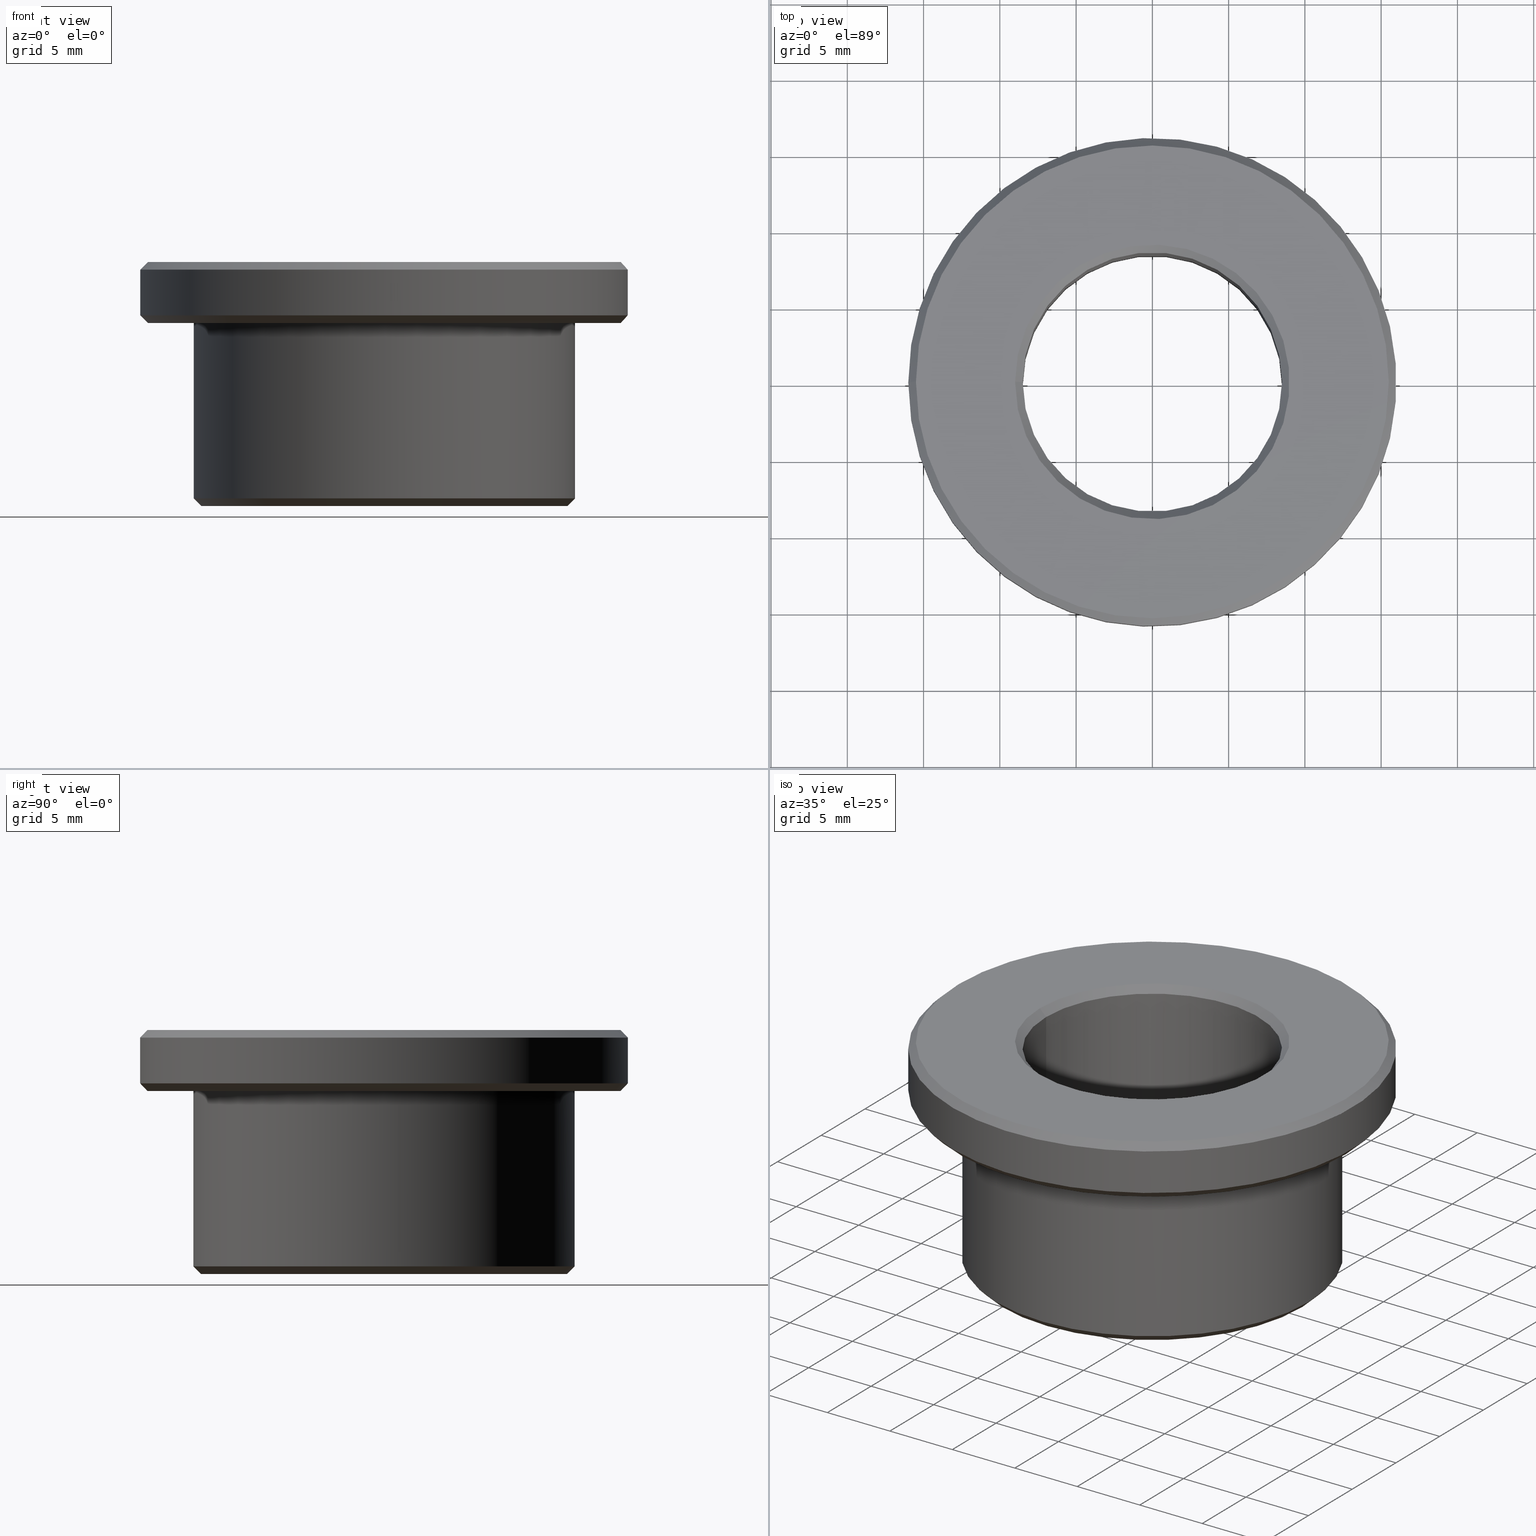
[diagram: canonical four-view strip — front | top / right | iso, engineering-drawing reading convention]
A machine part, canonical four-view strip (front | top / right | iso — engineering-drawing reading convention). The complete STEP part file that produces these views, byte-faithful:
ISO-10303-21;
HEADER;
FILE_DESCRIPTION(('STEP AP203'),'1');
FILE_NAME('590-LMF1716.stp','2018-04-20T10:46:32',(' '),(' '),'Spatial InterOp 3D',' ',' ');
FILE_SCHEMA(('CONFIG_CONTROL_DESIGN'));
ENDSEC;
DATA;
#1=DESIGN_CONTEXT('',#51,'design');
#2=APPLICATION_PROTOCOL_DEFINITION('INTERNATIONAL STANDARD','config_control_design',1994,#51);
#3=PRODUCT_CATEGORY_RELATIONSHIP('NONE','NONE',#52,#53);
#4=DATE_AND_TIME(#54,#55);
#5=DATE_TIME_ROLE('creation_date');
#6=DATE_TIME_ROLE('classification_date');
#7=PERSON_AND_ORGANIZATION_ROLE('creator');
#8=PERSON_AND_ORGANIZATION_ROLE('design_supplier');
#9=PERSON_AND_ORGANIZATION_ROLE('classification_officer');
#10=PERSON_AND_ORGANIZATION_ROLE('design_owner');
#11=APPROVAL_PERSON_ORGANIZATION(#56,#57,#58);
#12=APPROVAL_DATE_TIME(#4,#57);
#13=CC_DESIGN_APPROVAL(#57,(#59,#60,#61));
#14=CC_DESIGN_DATE_AND_TIME_ASSIGNMENT(#4,#5,(#61));
#15=CC_DESIGN_DATE_AND_TIME_ASSIGNMENT(#4,#6,(#59));
#16=CC_DESIGN_PERSON_AND_ORGANIZATION_ASSIGNMENT(#56,#10,(#62));
#17=CC_DESIGN_PERSON_AND_ORGANIZATION_ASSIGNMENT(#56,#7,(#61));
#18=CC_DESIGN_PERSON_AND_ORGANIZATION_ASSIGNMENT(#56,#7,(#60));
#19=CC_DESIGN_PERSON_AND_ORGANIZATION_ASSIGNMENT(#56,#8,(#60));
#20=CC_DESIGN_SECURITY_CLASSIFICATION(#59,(#60));
#21=CC_DESIGN_PERSON_AND_ORGANIZATION_ASSIGNMENT(#56,#9,(#59));
#22=SHAPE_DEFINITION_REPRESENTATION(#63,#64);
#23=DESIGN_CONTEXT('',#65,'design');
#24=APPLICATION_PROTOCOL_DEFINITION('INTERNATIONAL STANDARD','config_control_design',1994,#65);
#25=PRODUCT_CATEGORY_RELATIONSHIP('NONE','NONE',#66,#67);
#26=DATE_AND_TIME(#68,#69);
#27=DATE_TIME_ROLE('creation_date');
#28=DATE_TIME_ROLE('classification_date');
#29=PERSON_AND_ORGANIZATION_ROLE('creator');
#30=PERSON_AND_ORGANIZATION_ROLE('design_supplier');
#31=PERSON_AND_ORGANIZATION_ROLE('classification_officer');
#32=PERSON_AND_ORGANIZATION_ROLE('design_owner');
#33=APPROVAL_PERSON_ORGANIZATION(#70,#71,#72);
#34=APPROVAL_DATE_TIME(#26,#71);
#35=CC_DESIGN_APPROVAL(#71,(#73,#74,#75));
#36=CC_DESIGN_DATE_AND_TIME_ASSIGNMENT(#26,#27,(#75));
#37=CC_DESIGN_DATE_AND_TIME_ASSIGNMENT(#26,#28,(#73));
#38=CC_DESIGN_PERSON_AND_ORGANIZATION_ASSIGNMENT(#70,#32,(#76));
#39=CC_DESIGN_PERSON_AND_ORGANIZATION_ASSIGNMENT(#70,#29,(#75));
#40=CC_DESIGN_PERSON_AND_ORGANIZATION_ASSIGNMENT(#70,#29,(#74));
#41=CC_DESIGN_PERSON_AND_ORGANIZATION_ASSIGNMENT(#70,#30,(#74));
#42=CC_DESIGN_SECURITY_CLASSIFICATION(#73,(#74));
#43=CC_DESIGN_PERSON_AND_ORGANIZATION_ASSIGNMENT(#70,#31,(#73));
#44=CONTEXT_DEPENDENT_SHAPE_REPRESENTATION(#77,#78);
#45=SHAPE_DEFINITION_REPRESENTATION(#79,#80);
#46=SHAPE_REPRESENTATION_RELATIONSHIP('NONE','NONE',#80,#81);
#47= (GEOMETRIC_REPRESENTATION_CONTEXT(3)GLOBAL_UNCERTAINTY_ASSIGNED_CONTEXT((#84))GLOBAL_UNIT_ASSIGNED_CONTEXT((#86,#87,#88))REPRESENTATION_CONTEXT('NONE','WORKSPACE'));
#51=APPLICATION_CONTEXT('CONFIGURATION CONTROLLED 3D DESIGNS OF MECHANICAL PARTS AND ASSEMBLIES');
#52=PRODUCT_CATEGORY('part','NONE');
#53=PRODUCT_RELATED_PRODUCT_CATEGORY('detail',' ',(#62));
#54=CALENDAR_DATE(2018,20,3);
#55=LOCAL_TIME(12,46,32.0,#90);
#56=PERSON_AND_ORGANIZATION(#91,#92);
#57=APPROVAL(#93,'SOLID MODEL');
#58=APPROVAL_ROLE('APPROVED');
#59=SECURITY_CLASSIFICATION('','',#94);
#60=PRODUCT_DEFINITION_FORMATION_WITH_SPECIFIED_SOURCE(' ','NONE',#62,.NOT_KNOWN.);
#61=PRODUCT_DEFINITION('NONE','NONE',#60,#1);
#62=PRODUCT('','','PART--DESC',(#95));
#63=PRODUCT_DEFINITION_SHAPE('NONE','NONE',#61);
#64=SHAPE_REPRESENTATION('',(#96,#97),#98);
#65=APPLICATION_CONTEXT('CONFIGURATION CONTROLLED 3D DESIGNS OF MECHANICAL PARTS AND ASSEMBLIES');
#66=PRODUCT_CATEGORY('part','NONE');
#67=PRODUCT_RELATED_PRODUCT_CATEGORY('detail',' ',(#76));
#68=CALENDAR_DATE(2018,20,3);
#69=LOCAL_TIME(12,46,32.0,#99);
#70=PERSON_AND_ORGANIZATION(#100,#101);
#71=APPROVAL(#102,'SOLID MODEL');
#72=APPROVAL_ROLE('APPROVED');
#73=SECURITY_CLASSIFICATION('','',#103);
#74=PRODUCT_DEFINITION_FORMATION_WITH_SPECIFIED_SOURCE(' ','NONE',#76,.NOT_KNOWN.);
#75=PRODUCT_DEFINITION('590-LMF017x16','590-LMF017x16',#74,#23);
#76=PRODUCT('590-LMF017x16','590-LMF017x16','PART-590-LMF017x16-DESC',(#104));
#77=(REPRESENTATION_RELATIONSHIP('','',#80,#64)REPRESENTATION_RELATIONSHIP_WITH_TRANSFORMATION(#107)SHAPE_REPRESENTATION_RELATIONSHIP());
#78=PRODUCT_DEFINITION_SHAPE('NAUO-PROD-DEF','NAUO-PROD-DEF',#109);
#79=PRODUCT_DEFINITION_SHAPE('NONE','NONE',#75);
#80=SHAPE_REPRESENTATION('590-LMF017x16',(#96),#98);
#81=ADVANCED_BREP_SHAPE_REPRESENTATION('',(#110),#47);
#84=UNCERTAINTY_MEASURE_WITH_UNIT(LENGTH_MEASURE(1.0E-006),#86,'','');
#86= (CONVERSION_BASED_UNIT('METRE',#113)LENGTH_UNIT()NAMED_UNIT(#116));
#87= (NAMED_UNIT(#118)PLANE_ANGLE_UNIT()SI_UNIT($,.RADIAN.));
#88= (NAMED_UNIT(#118)SOLID_ANGLE_UNIT()SI_UNIT($,.STERADIAN.));
#90=COORDINATED_UNIVERSAL_TIME_OFFSET(1,0,.AHEAD.);
#91=PERSON('','UNSPECIFIED',$,$,$,$);
#92=ORGANIZATION('UNSPECIFIED','UNSPECIFIED','UNSPECIFIED');
#93=APPROVAL_STATUS('approved');
#94=SECURITY_CLASSIFICATION_LEVEL('unclassified');
#95=MECHANICAL_CONTEXT('',#51,'mechanical');
#96=AXIS2_PLACEMENT_3D('',#124,#125,#126);
#97=AXIS2_PLACEMENT_3D('',#127,#128,#129);
#98= (GEOMETRIC_REPRESENTATION_CONTEXT(3)GLOBAL_UNCERTAINTY_ASSIGNED_CONTEXT((#132))GLOBAL_UNIT_ASSIGNED_CONTEXT((#134,#135,#136))REPRESENTATION_CONTEXT('NONE','WORKSPACE'));
#99=COORDINATED_UNIVERSAL_TIME_OFFSET(1,0,.AHEAD.);
#100=PERSON('','UNSPECIFIED',$,$,$,$);
#101=ORGANIZATION('UNSPECIFIED','UNSPECIFIED','UNSPECIFIED');
#102=APPROVAL_STATUS('approved');
#103=SECURITY_CLASSIFICATION_LEVEL('unclassified');
#104=MECHANICAL_CONTEXT('',#65,'mechanical');
#107=ITEM_DEFINED_TRANSFORMATION('','',#96,#97);
#109=NEXT_ASSEMBLY_USAGE_OCCURRENCE('590-LMF017x16','590-LMF017x16','590-LMF017x16',#61,#75,$);
#110=MANIFOLD_SOLID_BREP('',#138);
#113=LENGTH_MEASURE_WITH_UNIT(LENGTH_MEASURE(1.0),#139);
#116=DIMENSIONAL_EXPONENTS(1.0,0.0,0.0,0.0,0.0,0.0,0.0);
#118=DIMENSIONAL_EXPONENTS(0.0,0.0,0.0,0.0,0.0,0.0,0.0);
#124=CARTESIAN_POINT('',(0.0,0.0,0.0));
#125=DIRECTION('',(0.0,0.0,1.0));
#126=DIRECTION('',(1.0,0.0,0.0));
#127=CARTESIAN_POINT('',(0.0,0.0,0.0));
#128=DIRECTION('',(5.48707263966374E-016,-5.48707263966374E-016,1.0));
#129=DIRECTION('',(-1.60812264967663E-016,1.0,5.48707263966374E-016));
#132=UNCERTAINTY_MEASURE_WITH_UNIT(LENGTH_MEASURE(1.0E-006),#134,'','');
#134= (CONVERSION_BASED_UNIT('METRE',#142)LENGTH_UNIT()NAMED_UNIT(#145));
#135= (NAMED_UNIT(#147)PLANE_ANGLE_UNIT()SI_UNIT($,.RADIAN.));
#136= (NAMED_UNIT(#147)SOLID_ANGLE_UNIT()SI_UNIT($,.STERADIAN.));
#138=CLOSED_SHELL('',(#153,#154,#155,#156,#157,#158,#159,#160,#161,#162,#163,#164,#165,#166,#167,#168,#169,#170));
#139= (NAMED_UNIT(#116)LENGTH_UNIT()SI_UNIT($,.METRE.));
#142=LENGTH_MEASURE_WITH_UNIT(LENGTH_MEASURE(1.0),#172);
#145=DIMENSIONAL_EXPONENTS(1.0,0.0,0.0,0.0,0.0,0.0,0.0);
#147=DIMENSIONAL_EXPONENTS(0.0,0.0,0.0,0.0,0.0,0.0,0.0);
#153=ADVANCED_FACE('',(#173),#174,.F.);
#154=ADVANCED_FACE('',(#175),#176,.T.);
#155=ADVANCED_FACE('',(#177),#178,.F.);
#156=ADVANCED_FACE('',(#179,#180),#181,.F.);
#157=ADVANCED_FACE('',(#182,#183),#184,.F.);
#158=ADVANCED_FACE('',(#185,#186),#187,.T.);
#159=ADVANCED_FACE('',(#188,#189,#190),#191,.F.);
#160=ADVANCED_FACE('',(#192,#193),#194,.T.);
#161=ADVANCED_FACE('',(#195,#196),#197,.T.);
#162=ADVANCED_FACE('',(#198,#199),#200,.T.);
#163=ADVANCED_FACE('',(#201,#202),#203,.T.);
#164=ADVANCED_FACE('',(#204,#205),#206,.T.);
#165=ADVANCED_FACE('',(#207,#208),#209,.T.);
#166=ADVANCED_FACE('',(#210,#211),#212,.T.);
#167=ADVANCED_FACE('',(#213),#214,.T.);
#168=ADVANCED_FACE('',(#215),#216,.F.);
#169=ADVANCED_FACE('',(#217),#218,.F.);
#170=ADVANCED_FACE('',(#219),#220,.F.);
#172= (NAMED_UNIT(#145)LENGTH_UNIT()SI_UNIT($,.METRE.));
#173=FACE_OUTER_BOUND('',#222,.T.);
#174=CYLINDRICAL_SURFACE('',#223,0.00075);
#175=FACE_OUTER_BOUND('',#224,.T.);
#176=PLANE('',#225);
#177=FACE_OUTER_BOUND('',#226,.T.);
#178=CYLINDRICAL_SURFACE('',#227,0.00075);
#179=FACE_BOUND('',#228,.T.);
#180=FACE_OUTER_BOUND('',#229,.T.);
#181=CONICAL_SURFACE('',#230,0.009,0.785398163397443);
#182=FACE_OUTER_BOUND('',#231,.T.);
#183=FACE_BOUND('',#232,.T.);
#184=CONICAL_SURFACE('',#233,0.0085,0.785398163397442);
#185=FACE_BOUND('',#234,.T.);
#186=FACE_OUTER_BOUND('',#235,.T.);
#187=PLANE('',#236);
#188=FACE_OUTER_BOUND('',#237,.T.);
#189=FACE_OUTER_BOUND('',#238,.T.);
#190=FACE_BOUND('',#239,.T.);
#191=CYLINDRICAL_SURFACE('',#240,0.0085);
#192=FACE_BOUND('',#241,.T.);
#193=FACE_OUTER_BOUND('',#242,.T.);
#194=CONICAL_SURFACE('',#243,0.016,0.78539816339745);
#195=FACE_OUTER_BOUND('',#244,.T.);
#196=FACE_OUTER_BOUND('',#245,.T.);
#197=CYLINDRICAL_SURFACE('',#246,0.016);
#198=FACE_OUTER_BOUND('',#247,.T.);
#199=FACE_BOUND('',#248,.T.);
#200=CONICAL_SURFACE('',#249,0.0155,0.785398163397448);
#201=FACE_OUTER_BOUND('',#250,.T.);
#202=FACE_BOUND('',#251,.T.);
#203=PLANE('',#252);
#204=FACE_OUTER_BOUND('',#253,.T.);
#205=FACE_OUTER_BOUND('',#254,.T.);
#206=CYLINDRICAL_SURFACE('',#255,0.0125);
#207=FACE_OUTER_BOUND('',#256,.T.);
#208=FACE_BOUND('',#257,.T.);
#209=CONICAL_SURFACE('',#258,0.012,0.785398163397449);
#210=FACE_OUTER_BOUND('',#259,.T.);
#211=FACE_BOUND('',#260,.T.);
#212=PLANE('',#261);
#213=FACE_OUTER_BOUND('',#262,.T.);
#214=PLANE('',#263);
#215=FACE_OUTER_BOUND('',#264,.T.);
#216=SPHERICAL_SURFACE('',#265,0.00075);
#217=FACE_OUTER_BOUND('',#266,.T.);
#218=CYLINDRICAL_SURFACE('',#267,0.00075);
#219=FACE_OUTER_BOUND('',#268,.T.);
#220=SPHERICAL_SURFACE('',#269,0.00075);
#222=EDGE_LOOP('',(#270,#271,#272,#273));
#223=AXIS2_PLACEMENT_3D('',#274,#275,#276);
#224=EDGE_LOOP('',(#277,#278,#279,#280));
#225=AXIS2_PLACEMENT_3D('',#281,#282,#283);
#226=EDGE_LOOP('',(#284,#285,#286,#287));
#227=AXIS2_PLACEMENT_3D('',#288,#289,#290);
#228=EDGE_LOOP('',(#291));
#229=EDGE_LOOP('',(#292));
#230=AXIS2_PLACEMENT_3D('',#293,#294,#295);
#231=EDGE_LOOP('',(#296));
#232=EDGE_LOOP('',(#297));
#233=AXIS2_PLACEMENT_3D('',#298,#299,#300);
#234=EDGE_LOOP('',(#301));
#235=EDGE_LOOP('',(#302));
#236=AXIS2_PLACEMENT_3D('',#303,#304,#305);
#237=EDGE_LOOP('',(#306));
#238=EDGE_LOOP('',(#307));
#239=EDGE_LOOP('',(#308,#309,#310,#311));
#240=AXIS2_PLACEMENT_3D('',#312,#313,#314);
#241=EDGE_LOOP('',(#315));
#242=EDGE_LOOP('',(#316));
#243=AXIS2_PLACEMENT_3D('',#317,#318,#319);
#244=EDGE_LOOP('',(#320));
#245=EDGE_LOOP('',(#321));
#246=AXIS2_PLACEMENT_3D('',#322,#323,#324);
#247=EDGE_LOOP('',(#325));
#248=EDGE_LOOP('',(#326));
#249=AXIS2_PLACEMENT_3D('',#327,#328,#329);
#250=EDGE_LOOP('',(#330));
#251=EDGE_LOOP('',(#331));
#252=AXIS2_PLACEMENT_3D('',#332,#333,#334);
#253=EDGE_LOOP('',(#335));
#254=EDGE_LOOP('',(#336));
#255=AXIS2_PLACEMENT_3D('',#337,#338,#339);
#256=EDGE_LOOP('',(#340));
#257=EDGE_LOOP('',(#341));
#258=AXIS2_PLACEMENT_3D('',#342,#343,#344);
#259=EDGE_LOOP('',(#345));
#260=EDGE_LOOP('',(#346));
#261=AXIS2_PLACEMENT_3D('',#347,#348,#349);
#262=EDGE_LOOP('',(#350,#351,#352,#353));
#263=AXIS2_PLACEMENT_3D('',#354,#355,#356);
#264=EDGE_LOOP('',(#357,#358));
#265=AXIS2_PLACEMENT_3D('',#359,#360,#361);
#266=EDGE_LOOP('',(#362,#363,#364,#365));
#267=AXIS2_PLACEMENT_3D('',#366,#367,#368);
#268=EDGE_LOOP('',(#369,#370));
#269=AXIS2_PLACEMENT_3D('',#371,#372,#373);
#270=ORIENTED_EDGE('',*,*,#374,.F.);
#271=ORIENTED_EDGE('',*,*,#375,.T.);
#272=ORIENTED_EDGE('',*,*,#376,.T.);
#273=ORIENTED_EDGE('',*,*,#377,.F.);
#274=CARTESIAN_POINT('',(7.11236625150491E-017,-0.0095000000000002,0.00375));
#275=DIRECTION('',(0.0,1.0,0.0));
#276=DIRECTION('',(0.0,0.0,1.0));
#277=ORIENTED_EDGE('',*,*,#378,.F.);
#278=ORIENTED_EDGE('',*,*,#379,.T.);
#279=ORIENTED_EDGE('',*,*,#374,.T.);
#280=ORIENTED_EDGE('',*,*,#380,.F.);
#281=CARTESIAN_POINT('',(-0.00074999999999993,-0.0095000000000002,0.01225));
#282=DIRECTION('',(1.0,0.0,1.020425574104E-016));
#283=DIRECTION('',(-1.020425574104E-016,0.0,1.0));
#284=ORIENTED_EDGE('',*,*,#381,.F.);
#285=ORIENTED_EDGE('',*,*,#382,.T.);
#286=ORIENTED_EDGE('',*,*,#378,.T.);
#287=ORIENTED_EDGE('',*,*,#383,.F.);
#288=CARTESIAN_POINT('',(7.06899816460549E-017,-0.0095000000000002,0.01225));
#289=DIRECTION('',(0.0,1.0,0.0));
#290=DIRECTION('',(0.0,0.0,1.0));
#291=ORIENTED_EDGE('',*,*,#384,.T.);
#292=ORIENTED_EDGE('',*,*,#385,.F.);
#293=CARTESIAN_POINT('',(0.0,0.0,0.016));
#294=DIRECTION('',(-0.0,6.12323399573677E-017,1.0));
#295=DIRECTION('',(0.0,-1.0,6.12323399573677E-017));
#296=ORIENTED_EDGE('',*,*,#386,.T.);
#297=ORIENTED_EDGE('',*,*,#387,.F.);
#298=CARTESIAN_POINT('',(0.0,0.0,0.0005));
#299=DIRECTION('',(0.0,-6.12323399573677E-017,-1.0));
#300=DIRECTION('',(0.0,1.0,-6.12323399573677E-017));
#301=ORIENTED_EDGE('',*,*,#385,.T.);
#302=ORIENTED_EDGE('',*,*,#388,.F.);
#303=CARTESIAN_POINT('',(0.0155,0.0,0.016));
#304=DIRECTION('',(0.0,6.12323399573677E-017,1.0));
#305=DIRECTION('',(0.0,-1.0,6.12323399573677E-017));
#306=ORIENTED_EDGE('',*,*,#387,.T.);
#307=ORIENTED_EDGE('',*,*,#384,.F.);
#308=ORIENTED_EDGE('',*,*,#389,.T.);
#309=ORIENTED_EDGE('',*,*,#383,.T.);
#310=ORIENTED_EDGE('',*,*,#380,.T.);
#311=ORIENTED_EDGE('',*,*,#377,.T.);
#312=CARTESIAN_POINT('',(0.0,0.0,0.0));
#313=DIRECTION('',(0.0,-6.12323399573677E-017,-1.0));
#314=DIRECTION('',(0.0,1.0,-6.12323399573677E-017));
#315=ORIENTED_EDGE('',*,*,#388,.T.);
#316=ORIENTED_EDGE('',*,*,#390,.F.);
#317=CARTESIAN_POINT('',(0.0,0.0,0.0155));
#318=DIRECTION('',(0.0,-6.12323399573677E-017,-1.0));
#319=DIRECTION('',(0.0,1.0,-6.12323399573677E-017));
#320=ORIENTED_EDGE('',*,*,#390,.T.);
#321=ORIENTED_EDGE('',*,*,#391,.F.);
#322=CARTESIAN_POINT('',(0.0,0.0,0.0));
#323=DIRECTION('',(0.0,-6.12323399573677E-017,-1.0));
#324=DIRECTION('',(0.0,1.0,-6.12323399573677E-017));
#325=ORIENTED_EDGE('',*,*,#391,.T.);
#326=ORIENTED_EDGE('',*,*,#392,.F.);
#327=CARTESIAN_POINT('',(0.0,0.0,0.012));
#328=DIRECTION('',(-0.0,6.12323399573677E-017,1.0));
#329=DIRECTION('',(0.0,-1.0,6.12323399573677E-017));
#330=ORIENTED_EDGE('',*,*,#392,.T.);
#331=ORIENTED_EDGE('',*,*,#393,.F.);
#332=CARTESIAN_POINT('',(0.0125,0.0,0.012));
#333=DIRECTION('',(0.0,-6.12323399573677E-017,-1.0));
#334=DIRECTION('',(0.0,1.0,-6.12323399573677E-017));
#335=ORIENTED_EDGE('',*,*,#393,.T.);
#336=ORIENTED_EDGE('',*,*,#394,.F.);
#337=CARTESIAN_POINT('',(0.0,0.0,0.0));
#338=DIRECTION('',(0.0,-6.12323399573677E-017,-1.0));
#339=DIRECTION('',(0.0,1.0,-6.12323399573677E-017));
#340=ORIENTED_EDGE('',*,*,#394,.T.);
#341=ORIENTED_EDGE('',*,*,#395,.F.);
#342=CARTESIAN_POINT('',(0.0,0.0,0.0));
#343=DIRECTION('',(-0.0,6.12323399573677E-017,1.0));
#344=DIRECTION('',(0.0,-1.0,6.12323399573677E-017));
#345=ORIENTED_EDGE('',*,*,#395,.T.);
#346=ORIENTED_EDGE('',*,*,#386,.F.);
#347=CARTESIAN_POINT('',(0.009,0.0,0.0));
#348=DIRECTION('',(0.0,-6.12323399573677E-017,-1.0));
#349=DIRECTION('',(0.0,1.0,-6.12323399573677E-017));
#350=ORIENTED_EDGE('',*,*,#376,.F.);
#351=ORIENTED_EDGE('',*,*,#396,.T.);
#352=ORIENTED_EDGE('',*,*,#381,.T.);
#353=ORIENTED_EDGE('',*,*,#389,.F.);
#354=CARTESIAN_POINT('',(0.000750000000000071,-0.0095000000000002,0.00375));
#355=DIRECTION('',(-1.0,0.0,0.0));
#356=DIRECTION('',(0.0,1.0,0.0));
#357=ORIENTED_EDGE('',*,*,#375,.F.);
#358=ORIENTED_EDGE('',*,*,#397,.T.);
#359=CARTESIAN_POINT('',(7.11236625150491E-017,-0.0087500000000002,0.00375));
#360=DIRECTION('',(0.0,-1.0,0.0));
#361=DIRECTION('',(0.0,0.0,-1.0));
#362=ORIENTED_EDGE('',*,*,#379,.F.);
#363=ORIENTED_EDGE('',*,*,#398,.T.);
#364=ORIENTED_EDGE('',*,*,#396,.F.);
#365=ORIENTED_EDGE('',*,*,#397,.F.);
#366=CARTESIAN_POINT('',(6.9931040125315E-017,-0.0087500000000002,0.01225));
#367=DIRECTION('',(1.020425574104E-016,0.0,-1.0));
#368=DIRECTION('',(-1.0,0.0,-1.020425574104E-016));
#369=ORIENTED_EDGE('',*,*,#398,.F.);
#370=ORIENTED_EDGE('',*,*,#382,.F.);
#371=CARTESIAN_POINT('',(7.06899816460549E-017,-0.0087500000000002,0.01225));
#372=DIRECTION('',(0.0,-1.0,0.0));
#373=DIRECTION('',(0.0,0.0,-1.0));
#374=EDGE_CURVE('',#399,#400,#401,.T.);
#375=EDGE_CURVE('',#399,#402,#403,.F.);
#376=EDGE_CURVE('',#402,#404,#405,.T.);
#377=EDGE_CURVE('',#400,#404,#406,.T.);
#378=EDGE_CURVE('',#407,#408,#409,.T.);
#379=EDGE_CURVE('',#407,#399,#410,.T.);
#380=EDGE_CURVE('',#408,#400,#411,.T.);
#381=EDGE_CURVE('',#412,#413,#414,.T.);
#382=EDGE_CURVE('',#412,#407,#415,.F.);
#383=EDGE_CURVE('',#413,#408,#416,.T.);
#384=EDGE_CURVE('',#417,#417,#418,.T.);
#385=EDGE_CURVE('',#419,#419,#420,.T.);
#386=EDGE_CURVE('',#421,#421,#422,.T.);
#387=EDGE_CURVE('',#423,#423,#424,.T.);
#388=EDGE_CURVE('',#425,#425,#426,.T.);
#389=EDGE_CURVE('',#404,#413,#427,.F.);
#390=EDGE_CURVE('',#428,#428,#429,.T.);
#391=EDGE_CURVE('',#430,#430,#431,.T.);
#392=EDGE_CURVE('',#432,#432,#433,.T.);
#393=EDGE_CURVE('',#434,#434,#435,.T.);
#394=EDGE_CURVE('',#436,#436,#437,.T.);
#395=EDGE_CURVE('',#438,#438,#439,.T.);
#396=EDGE_CURVE('',#402,#412,#440,.T.);
#397=EDGE_CURVE('',#399,#402,#441,.T.);
#398=EDGE_CURVE('',#407,#412,#442,.T.);
#399=VERTEX_POINT('',#443);
#400=VERTEX_POINT('',#444);
#401=LINE('',#445,#446);
#402=VERTEX_POINT('',#447);
#403=CIRCLE('',#448,0.00075);
#404=VERTEX_POINT('',#449);
#405=LINE('',#450,#451);
#406=B_SPLINE_CURVE_WITH_KNOTS('',3,(#452,#453,#454,#455,#456,#457,#458,#459,#460,#461,#462,#463,#464,#465),.UNSPECIFIED.,.F.,.F.,(4,2,2,2,2,2,4),(0.0,0.000293183881928983,0.000586367763857965,0.00117273552771593,0.00146591940964491,0.0017591032915739,0.00234547105543186),.UNSPECIFIED.);
#407=VERTEX_POINT('',#466);
#408=VERTEX_POINT('',#467);
#409=LINE('',#468,#469);
#410=LINE('',#470,#471);
#411=LINE('',#472,#473);
#412=VERTEX_POINT('',#474);
#413=VERTEX_POINT('',#475);
#414=LINE('',#476,#477);
#415=CIRCLE('',#478,0.00075);
#416=B_SPLINE_CURVE_WITH_KNOTS('',3,(#479,#480,#481,#482,#483,#484,#485,#486,#487,#488,#489,#490,#491,#492),.UNSPECIFIED.,.F.,.F.,(4,2,2,2,2,2,4),(0.0,0.000293183881928981,0.000586367763857962,0.00117273552771592,0.0014659194096449,0.00175910329157388,0.00234547105543185),.UNSPECIFIED.);
#417=VERTEX_POINT('',#493);
#418=CIRCLE('',#494,0.0085);
#419=VERTEX_POINT('',#495);
#420=CIRCLE('',#496,0.009);
#421=VERTEX_POINT('',#497);
#422=CIRCLE('',#498,0.009);
#423=VERTEX_POINT('',#499);
#424=CIRCLE('',#500,0.0085);
#425=VERTEX_POINT('',#501);
#426=CIRCLE('',#502,0.0155);
#427=LINE('',#503,#504);
#428=VERTEX_POINT('',#505);
#429=CIRCLE('',#506,0.016);
#430=VERTEX_POINT('',#507);
#431=CIRCLE('',#508,0.016);
#432=VERTEX_POINT('',#509);
#433=CIRCLE('',#510,0.0155);
#434=VERTEX_POINT('',#511);
#435=CIRCLE('',#512,0.0125);
#436=VERTEX_POINT('',#513);
#437=CIRCLE('',#514,0.0125);
#438=VERTEX_POINT('',#515);
#439=CIRCLE('',#516,0.012);
#440=LINE('',#517,#518);
#441=CIRCLE('',#519,0.00075);
#442=CIRCLE('',#520,0.00075);
#443=CARTESIAN_POINT('',(-0.000749999999999929,-0.0087500000000002,0.00375));
#444=CARTESIAN_POINT('',(-0.000749999999999929,-0.00846684711093806,0.00375));
#445=CARTESIAN_POINT('',(-0.000749999999999929,-0.0095000000000002,0.00375));
#446=VECTOR('',#521,1.0);
#447=CARTESIAN_POINT('',(0.000750000000000071,-0.0087500000000002,0.00375));
#448=AXIS2_PLACEMENT_3D('',#522,#523,#524);
#449=CARTESIAN_POINT('',(0.000750000000000071,-0.00846684711093805,0.00375));
#450=CARTESIAN_POINT('',(0.000750000000000071,-0.0095000000000002,0.00375));
#451=VECTOR('',#525,1.0);
#452=CARTESIAN_POINT('',(-0.000749999999999929,-0.00846684711093806,0.00375));
#453=CARTESIAN_POINT('',(-0.000749999999999929,-0.00846684711093806,0.0036508611872936));
#454=CARTESIAN_POINT('',(-0.000730468172787895,-0.00846863878928428,0.00355358360969306));
#455=CARTESIAN_POINT('',(-0.00065517630374202,-0.00847479620438399,0.00337196936519344));
#456=CARTESIAN_POINT('',(-0.000599468761819626,-0.00847911772780836,0.00328880595669005));
#457=CARTESIAN_POINT('',(-0.000392022436605981,-0.00849208568980102,0.0030813675321028));
#458=CARTESIAN_POINT('',(-0.000196256689362259,-0.00849998786390899,0.00300013754239835));
#459=CARTESIAN_POINT('',(9.73388534999804E-005,-0.00850000604360251,0.00299993150582145));
#460=CARTESIAN_POINT('',(0.000195662172419677,-0.00849823366284435,0.0030193322233774));
#461=CARTESIAN_POINT('',(0.000377317798814342,-0.00849210753304,0.00309441601284921));
#462=CARTESIAN_POINT('',(0.000459907177949217,-0.00848783908855336,0.00314934407798534));
#463=CARTESIAN_POINT('',(0.000670075378625282,-0.00847470984806996,0.00335922182394353));
#464=CARTESIAN_POINT('',(0.000750000000000071,-0.00846684711093805,0.00355172269203866));
#465=CARTESIAN_POINT('',(0.000750000000000071,-0.00846684711093805,0.00375));
#466=CARTESIAN_POINT('',(-0.00074999999999993,-0.0087500000000002,0.01225));
#467=CARTESIAN_POINT('',(-0.00074999999999993,-0.00846684711093806,0.01225));
#468=CARTESIAN_POINT('',(-0.00074999999999993,-0.0095000000000002,0.01225));
#469=VECTOR('',#526,1.0);
#470=CARTESIAN_POINT('',(-0.00074999999999993,-0.0087500000000002,0.01225));
#471=VECTOR('',#527,1.0);
#472=CARTESIAN_POINT('',(-0.000749999999999929,-0.00846684711093806,4.41912942606223E-019));
#473=VECTOR('',#528,1.0);
#474=CARTESIAN_POINT('',(0.000750000000000071,-0.0087500000000002,0.01225));
#475=CARTESIAN_POINT('',(0.000750000000000071,-0.00846684711093805,0.01225));
#476=CARTESIAN_POINT('',(0.000750000000000071,-0.0095000000000002,0.01225));
#477=VECTOR('',#529,1.0);
#478=AXIS2_PLACEMENT_3D('',#530,#531,#532);
#479=CARTESIAN_POINT('',(0.000750000000000072,-0.00846684711093805,0.01225));
#480=CARTESIAN_POINT('',(0.000750000000000072,-0.00846684711093805,0.0123491388127064));
#481=CARTESIAN_POINT('',(0.000730468172788034,-0.00846863878928426,0.0124464163903069));
#482=CARTESIAN_POINT('',(0.00065517630374216,-0.00847479620438397,0.0126280306348066));
#483=CARTESIAN_POINT('',(0.000599468761819761,-0.00847911772780834,0.01271119404331));
#484=CARTESIAN_POINT('',(0.000392022436606129,-0.00849208568980101,0.0129186324678972));
#485=CARTESIAN_POINT('',(0.000196256689362385,-0.00849998786390899,0.0129998624576016));
#486=CARTESIAN_POINT('',(-9.73388534998256E-005,-0.00850000604360252,0.0130000684941786));
#487=CARTESIAN_POINT('',(-0.000195662172419537,-0.00849823366284435,0.0129806677766226));
#488=CARTESIAN_POINT('',(-0.000377317798814187,-0.00849210753304001,0.0129055839871508));
#489=CARTESIAN_POINT('',(-0.000459907177949074,-0.00848783908855336,0.0128506559220147));
#490=CARTESIAN_POINT('',(-0.000670075378625129,-0.00847470984806998,0.0126407781760565));
#491=CARTESIAN_POINT('',(-0.00074999999999993,-0.00846684711093806,0.0124482773079613));
#492=CARTESIAN_POINT('',(-0.00074999999999993,-0.00846684711093806,0.01225));
#493=CARTESIAN_POINT('',(0.0,0.0085,0.0155));
#494=AXIS2_PLACEMENT_3D('',#533,#534,#535);
#495=CARTESIAN_POINT('',(0.0,0.009,0.016));
#496=AXIS2_PLACEMENT_3D('',#536,#537,#538);
#497=CARTESIAN_POINT('',(0.0,0.009,-5.51091059616309E-019));
#498=AXIS2_PLACEMENT_3D('',#539,#540,#541);
#499=CARTESIAN_POINT('',(0.0,0.0085,0.0005));
#500=AXIS2_PLACEMENT_3D('',#542,#543,#544);
#501=CARTESIAN_POINT('',(0.0,0.0155,0.016));
#502=AXIS2_PLACEMENT_3D('',#545,#546,#547);
#503=CARTESIAN_POINT('',(0.000750000000000071,-0.00846684711093805,5.18444860664015E-019));
#504=VECTOR('',#548,1.0);
#505=CARTESIAN_POINT('',(0.0,0.016,0.0155));
#506=AXIS2_PLACEMENT_3D('',#549,#550,#551);
#507=CARTESIAN_POINT('',(0.0,0.016,0.0125));
#508=AXIS2_PLACEMENT_3D('',#552,#553,#554);
#509=CARTESIAN_POINT('',(0.0,0.0155,0.012));
#510=AXIS2_PLACEMENT_3D('',#555,#556,#557);
#511=CARTESIAN_POINT('',(0.0,0.0125,0.012));
#512=AXIS2_PLACEMENT_3D('',#558,#559,#560);
#513=CARTESIAN_POINT('',(0.0,0.0125,0.0005));
#514=AXIS2_PLACEMENT_3D('',#561,#562,#563);
#515=CARTESIAN_POINT('',(0.0,0.012,-7.34788079488412E-019));
#516=AXIS2_PLACEMENT_3D('',#564,#565,#566);
#517=CARTESIAN_POINT('',(0.000750000000000071,-0.0087500000000002,0.00375));
#518=VECTOR('',#567,1.0);
#519=AXIS2_PLACEMENT_3D('',#568,#569,#570);
#520=AXIS2_PLACEMENT_3D('',#571,#572,#573);
#521=DIRECTION('',(0.0,1.0,0.0));
#522=CARTESIAN_POINT('',(7.11236625150491E-017,-0.0087500000000002,0.00375));
#523=DIRECTION('',(0.0,1.0,0.0));
#524=DIRECTION('',(0.0,0.0,1.0));
#525=DIRECTION('',(0.0,1.0,0.0));
#526=DIRECTION('',(0.0,1.0,0.0));
#527=DIRECTION('',(1.020425574104E-016,0.0,-1.0));
#528=DIRECTION('',(0.0,-6.12323399573677E-017,-1.0));
#529=DIRECTION('',(0.0,1.0,0.0));
#530=CARTESIAN_POINT('',(7.06899816460549E-017,-0.0087500000000002,0.01225));
#531=DIRECTION('',(0.0,1.0,0.0));
#532=DIRECTION('',(0.0,0.0,1.0));
#533=CARTESIAN_POINT('',(0.0,0.0,0.0155));
#534=DIRECTION('',(0.0,-6.12323399573677E-017,-1.0));
#535=DIRECTION('',(0.0,1.0,-6.12323399573677E-017));
#536=CARTESIAN_POINT('',(0.0,0.0,0.016));
#537=DIRECTION('',(0.0,-6.12323399573677E-017,-1.0));
#538=DIRECTION('',(0.0,1.0,-6.12323399573677E-017));
#539=CARTESIAN_POINT('',(0.0,0.0,0.0));
#540=DIRECTION('',(0.0,-6.12323399573677E-017,-1.0));
#541=DIRECTION('',(0.0,1.0,-6.12323399573677E-017));
#542=CARTESIAN_POINT('',(0.0,0.0,0.0005));
#543=DIRECTION('',(0.0,-6.12323399573677E-017,-1.0));
#544=DIRECTION('',(0.0,1.0,-6.12323399573677E-017));
#545=CARTESIAN_POINT('',(0.0,0.0,0.016));
#546=DIRECTION('',(0.0,-6.12323399573677E-017,-1.0));
#547=DIRECTION('',(0.0,1.0,-6.12323399573677E-017));
#548=DIRECTION('',(0.0,-6.12323399573677E-017,-1.0));
#549=CARTESIAN_POINT('',(0.0,0.0,0.0155));
#550=DIRECTION('',(0.0,-6.12323399573677E-017,-1.0));
#551=DIRECTION('',(0.0,1.0,-6.12323399573677E-017));
#552=CARTESIAN_POINT('',(0.0,0.0,0.0125));
#553=DIRECTION('',(0.0,-6.12323399573677E-017,-1.0));
#554=DIRECTION('',(0.0,1.0,-6.12323399573677E-017));
#555=CARTESIAN_POINT('',(0.0,0.0,0.012));
#556=DIRECTION('',(0.0,-6.12323399573677E-017,-1.0));
#557=DIRECTION('',(0.0,1.0,-6.12323399573677E-017));
#558=CARTESIAN_POINT('',(0.0,0.0,0.012));
#559=DIRECTION('',(0.0,-6.12323399573677E-017,-1.0));
#560=DIRECTION('',(0.0,1.0,-6.12323399573677E-017));
#561=CARTESIAN_POINT('',(0.0,0.0,0.0005));
#562=DIRECTION('',(0.0,-6.12323399573677E-017,-1.0));
#563=DIRECTION('',(0.0,1.0,-6.12323399573677E-017));
#564=CARTESIAN_POINT('',(0.0,0.0,0.0));
#565=DIRECTION('',(0.0,-6.12323399573677E-017,-1.0));
#566=DIRECTION('',(0.0,1.0,-6.12323399573677E-017));
#567=DIRECTION('',(0.0,0.0,1.0));
#568=CARTESIAN_POINT('',(7.07984018633034E-017,-0.0087500000000002,0.00375));
#569=DIRECTION('',(0.0,-2.31296463463574E-015,1.0));
#570=DIRECTION('',(0.0,-1.0,-2.31296463463574E-015));
#571=CARTESIAN_POINT('',(6.9931040125315E-017,-0.0087500000000002,0.01225));
#572=DIRECTION('',(0.0,0.0,1.0));
#573=DIRECTION('',(1.0,0.0,0.0));
ENDSEC;
END-ISO-10303-21;
